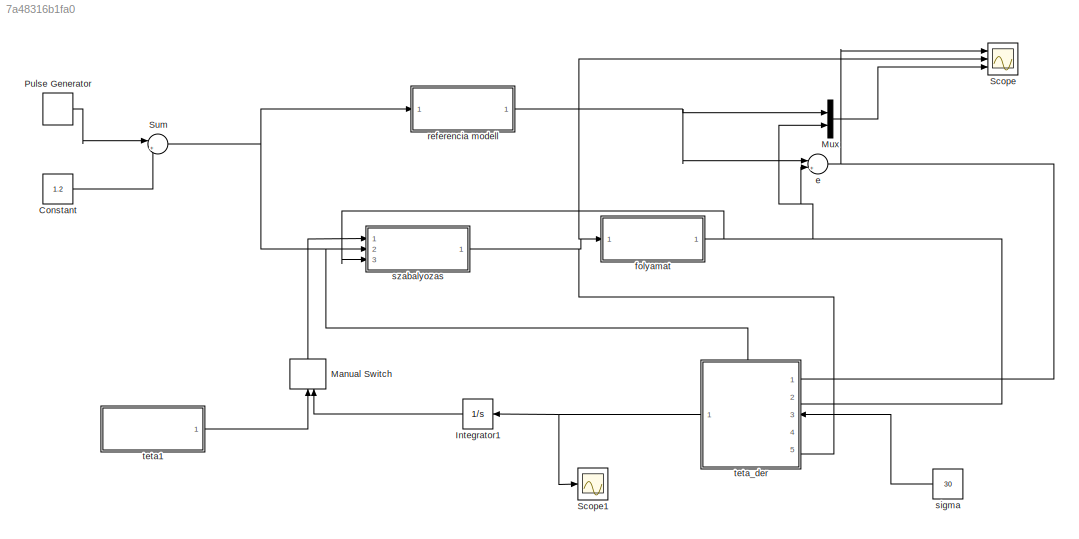
MODEL slx_7a48316b1fa0
KIND model
CONFIG AbsTol = auto
CONFIG EnableMultiTasking = off
CONFIG FixedStep = auto
CONFIG MaxStep = auto
CONFIG MinStep = auto
CONFIG RelTol = 1e-3
CONFIG SampleTimeConstraint = Unconstrained
CONFIG SolverName = VariableStepAuto
CONFIG StartTime = 0.0
CONFIG StopTime = 20
BLOCK [Constant] Constant
  Value = 1.2
BLOCK [Integrator] Integrator1
  InitialCondition = 50
  LimitOutput = on
  LowerSaturationLimit = 1
  NameLocation = top
  Ports = [1, 1]
  UpperSaturationLimit = 120
BLOCK [ManualSwitch] Manual Switch
  CurrentSetting = 0
  NameLocation = right
BLOCK [Mux] Mux
  DisplayOption = bar
  Inputs = 2
  Ports = [2, 1]
BLOCK [DiscretePulseGenerator] Pulse Generator
  Period = 1
  Ports = [0, 1]
  PulseType = Time based
  PulseWidth = 50
BLOCK [Scope] Scope
  Floating = off
  NumInputPorts = 3
  Ports = [3]
  ScopeSpecificationString = Simulink.scopes.TimeScopeBlockCfg('CurrentConfiguration', extmgr.ConfigurationSet(extmgr.Configuration('Core','General UI',true),extmgr.Configuration('Core','Source UI',true),extmgr.Configuration('Sources','WiredSimulink',true),extmgr.Configuration('Visuals','Time Domain',true,'SerializedDisplays',{struct('MinYLimReal','-4.66863','MaxYLimReal','2.56812','YLabelReal','','MinYLimMag','0.00000','MaxY...<+2771ch>
BLOCK [Scope] Scope1
  Floating = off
  NumInputPorts = 1
  Ports = [1]
  ScopeSpecificationString = Simulink.scopes.TimeScopeBlockCfg('CurrentConfiguration', extmgr.ConfigurationSet(extmgr.Configuration('Core','General UI',true),extmgr.Configuration('Core','Source UI',true),extmgr.Configuration('Sources','WiredSimulink',true,'DataLoggingVariableName','ScopeData1'),extmgr.Configuration('Visuals','Time Domain',true,'SerializedDisplays',{struct('MinYLimReal','-4.66863','MaxYLimReal','2.56812','YLab...<+1465ch>
BLOCK [Sum] Sum
  Inputs = |++
  Ports = [2, 1]
BLOCK [Sum] e
  Inputs = |+-
  Ports = [2, 1]
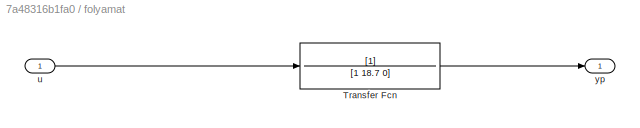
BLOCK [SubSystem] folyamat
  Ports = [1, 1]
  RequestExecContextInheritance = off
BLOCK [TransferFcn] folyamat/Transfer Fcn
  Denominator = [1 18.7 0]
BLOCK [Inport] folyamat/u
BLOCK [Outport] folyamat/yp
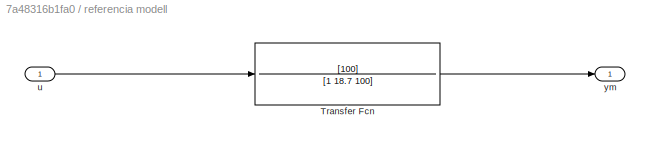
BLOCK [SubSystem] referencia modell
  Ports = [1, 1]
  RequestExecContextInheritance = off
BLOCK [TransferFcn] referencia modell/Transfer Fcn
  Denominator = [1 18.7 100]
  Numerator = [100]
BLOCK [Inport] referencia modell/u
BLOCK [Outport] referencia modell/ym
BLOCK [Constant] sigma
  NameLocation = top
  Value = 30
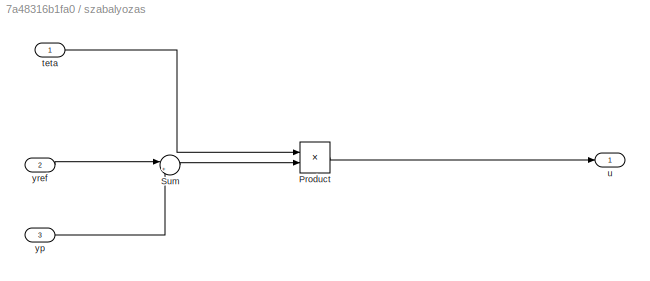
BLOCK [SubSystem] szabalyozas
  Ports = [3, 1]
  RequestExecContextInheritance = off
BLOCK [Product] szabalyozas/Product
  Ports = [2, 1]
BLOCK [Sum] szabalyozas/Sum
  Inputs = |+-
  Ports = [2, 1]
BLOCK [Inport] szabalyozas/teta
BLOCK [Outport] szabalyozas/u
BLOCK [Inport] szabalyozas/yp
  Port = 3
BLOCK [Inport] szabalyozas/yref
  Port = 2
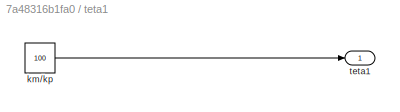
BLOCK [SubSystem] teta1
  Ports = [0, 1]
  RequestExecContextInheritance = off
BLOCK [Constant] teta1/km//kp
  Value = 100
BLOCK [Outport] teta1/teta1
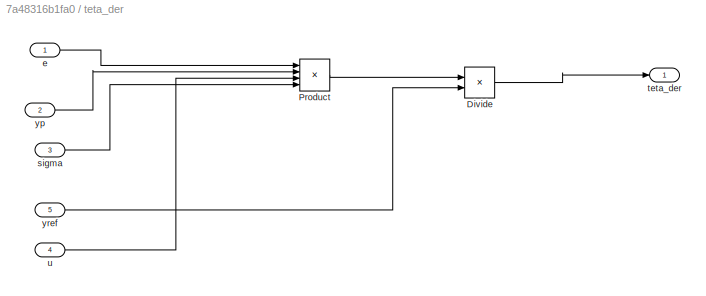
BLOCK [SubSystem] teta_der
  NameLocation = top
  PortSchema = {"entries":[{"content":{"sides":[{"content":{"connectorIds":["In1","In2","In3","In4"]},"type":"ConnectorPlacement.EquallySpacedRectSide","uuid":"1f235ddd-100f-49dc-9d03-e1da1996f74c"},{"content":{"connectorIds":["Out1"],"side":"RIGHT"},"type":"ConnectorPlacement.EquallySpacedRectSide","uuid":"59606dbd-4be0-440b-a8b6-984bd95783c3"},{"content":{"connectorIds":["In5"],"side":"TOP"},"type":"ConnectorP...<+263ch>
  Ports = [5, 1]
  RequestExecContextInheritance = off
BLOCK [Product] teta_der/Divide
  Inputs = */
  Ports = [2, 1]
BLOCK [Product] teta_der/Product
  Inputs = 4
  Ports = [4, 1]
BLOCK [Inport] teta_der/e
BLOCK [Inport] teta_der/sigma
  Port = 3
BLOCK [Outport] teta_der/teta_der
BLOCK [Inport] teta_der/u
  Port = 4
BLOCK [Inport] teta_der/yp
  Port = 2
BLOCK [Inport] teta_der/yref
  Port = 5
LINE Constant:1 -> Sum:2
LINE Integrator1:1 -> Manual Switch:2
LINE Manual Switch:1 -> szabalyozas:1
LINE Mux:1 -> Scope:3
LINE Pulse Generator:1 -> Sum:1
NET Sum:1 -> referencia modell:1, szabalyozas:2, teta_der:5
NET e:1 -> Scope:1, teta_der:1
LINE folyamat/Transfer Fcn:1 -> folyamat/yp:1
LINE folyamat/u:1 -> folyamat/Transfer Fcn:1
NET folyamat:1 -> Mux:2, e:2, szabalyozas:3, teta_der:2
LINE referencia modell/Transfer Fcn:1 -> referencia modell/ym:1
LINE referencia modell/u:1 -> referencia modell/Transfer Fcn:1
NET referencia modell:1 -> Mux:1, e:1
LINE sigma:1 -> teta_der:3
LINE szabalyozas/Product:1 -> szabalyozas/u:1
LINE szabalyozas/Sum:1 -> szabalyozas/Product:2
LINE szabalyozas/teta:1 -> szabalyozas/Product:1
LINE szabalyozas/yp:1 -> szabalyozas/Sum:2
LINE szabalyozas/yref:1 -> szabalyozas/Sum:1
NET szabalyozas:1 -> Scope:2, folyamat:1, teta_der:4
LINE teta1/km//kp:1 -> teta1/teta1:1
LINE teta1:1 -> Manual Switch:1
LINE teta_der/Divide:1 -> teta_der/teta_der:1
LINE teta_der/Product:1 -> teta_der/Divide:1
LINE teta_der/e:1 -> teta_der/Product:1
LINE teta_der/sigma:1 -> teta_der/Product:4
LINE teta_der/u:1 -> teta_der/Product:3
LINE teta_der/yp:1 -> teta_der/Product:2
LINE teta_der/yref:1 -> teta_der/Divide:2
NET teta_der:1 -> Integrator1:1, Scope1:1
note: NET lines group one-source signal fan-out (src -> all destinations, sorted); 1:1 wires keep LINE
